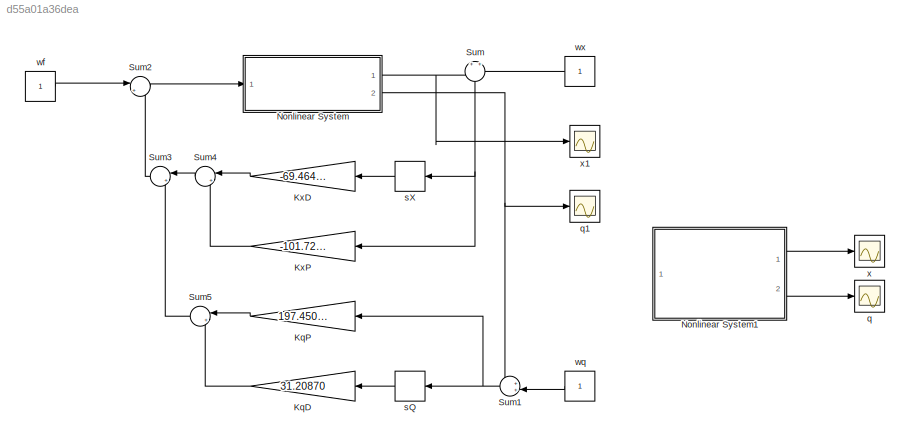
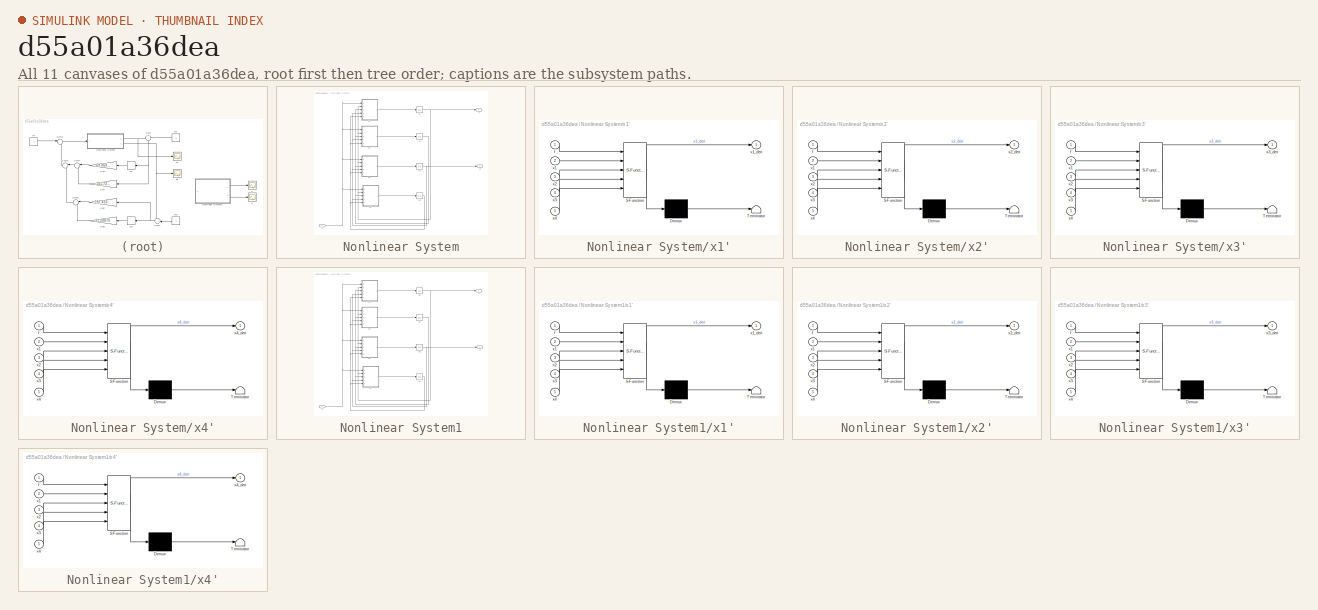
[diagram: thumbnail index - all 11 canvases of the model, root first then tree order]
MODEL slx_d55a01a36dea
KIND model
CONFIG AbsTol = auto
CONFIG FixedStep = auto
CONFIG MaxStep = auto
CONFIG MinStep = auto
CONFIG RelTol = 1e-3
CONFIG SampleTimeConstraint = Unconstrained
CONFIG Solver = VariableStepAuto
CONFIG SolverMode = Auto
CONFIG SolverName = VariableStepAuto
CONFIG StartTime = 0.0
CONFIG StopTime = 20.0
BLOCK [Gain] KqD
  Gain = 31.20870
  OutDataTypeStr = Inherit: Inherit via internal rule
  ParamDataTypeStr = Inherit: Inherit via internal rule
  SaturateOnIntegerOverflow = off
BLOCK [Gain] KqP
  Gain = 197.45085
  OutDataTypeStr = Inherit: Inherit via internal rule
  ParamDataTypeStr = Inherit: Inherit via internal rule
  SaturateOnIntegerOverflow = off
BLOCK [Gain] KxD
  Gain = -69.46499
  OutDataTypeStr = Inherit: Inherit via internal rule
  ParamDataTypeStr = Inherit: Inherit via internal rule
  SaturateOnIntegerOverflow = off
BLOCK [Gain] KxP
  Gain = -101.72465
  OutDataTypeStr = Inherit: Inherit via internal rule
  ParamDataTypeStr = Inherit: Inherit via internal rule
  SaturateOnIntegerOverflow = off
BLOCK [SubSystem] Nonlinear System
  Ports = [1, 2]
  RequestExecContextInheritance = off
  Variant = off
BLOCK [Inport] Nonlinear System/f
  IconDisplay = Port number
BLOCK [Outport] Nonlinear System/q
  IconDisplay = Port number
  Port = 2
BLOCK [Outport] Nonlinear System/x
  IconDisplay = Port number
BLOCK [Integrator] Nonlinear System/x1
  InitialCondition = -0.3
  Ports = [1, 1]
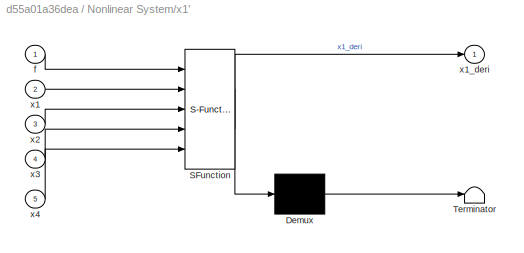
BLOCK [SubSystem] Nonlinear System/x1'
  ErrorFcn = Stateflow.Translate.translate
  PermitHierarchicalResolution = ExplicitOnly
  Ports = [5, 1]
  RequestExecContextInheritance = off
  SFBlockType = MATLAB Function
  TreatAsAtomicUnit = on
  Variant = off
BLOCK [Demux] Nonlinear System/x1'/ Demux 
  Outputs = 1
  Ports = [1, 1]
BLOCK [S-Function] Nonlinear System/x1'/ SFunction 
  EnableBusSupport = on
  FunctionName = sf_sfun
  PortCounts = [5 2]
  Ports = [5, 2]
  SFunctionDeploymentMode = off
  Tag = Stateflow S-Function elec3200lab4 3
BLOCK [Terminator] Nonlinear System/x1'/ Terminator 
BLOCK [Inport] Nonlinear System/x1'/f
  IconDisplay = Port number
BLOCK [Inport] Nonlinear System/x1'/x1
  IconDisplay = Port number
  Port = 2
BLOCK [Outport] Nonlinear System/x1'/x1_deri
  IconDisplay = Port number
BLOCK [Inport] Nonlinear System/x1'/x2
  IconDisplay = Port number
  Port = 3
BLOCK [Inport] Nonlinear System/x1'/x3
  IconDisplay = Port number
  Port = 4
BLOCK [Inport] Nonlinear System/x1'/x4
  IconDisplay = Port number
  Port = 5
BLOCK [Integrator] Nonlinear System/x2
  Ports = [1, 1]
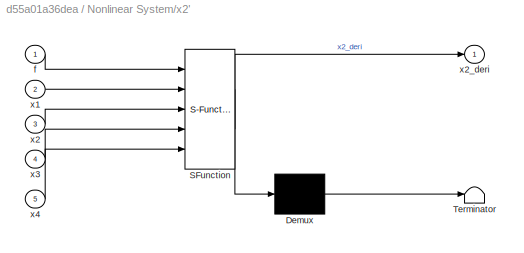
BLOCK [SubSystem] Nonlinear System/x2'
  ErrorFcn = Stateflow.Translate.translate
  PermitHierarchicalResolution = ExplicitOnly
  Ports = [5, 1]
  RequestExecContextInheritance = off
  SFBlockType = MATLAB Function
  TreatAsAtomicUnit = on
  Variant = off
BLOCK [Demux] Nonlinear System/x2'/ Demux 
  Outputs = 1
  Ports = [1, 1]
BLOCK [S-Function] Nonlinear System/x2'/ SFunction 
  EnableBusSupport = on
  FunctionName = sf_sfun
  PortCounts = [5 2]
  Ports = [5, 2]
  SFunctionDeploymentMode = off
  Tag = Stateflow S-Function elec3200lab4 1
BLOCK [Terminator] Nonlinear System/x2'/ Terminator 
BLOCK [Inport] Nonlinear System/x2'/f
  IconDisplay = Port number
BLOCK [Inport] Nonlinear System/x2'/x1
  IconDisplay = Port number
  Port = 2
BLOCK [Inport] Nonlinear System/x2'/x2
  IconDisplay = Port number
  Port = 3
BLOCK [Outport] Nonlinear System/x2'/x2_deri
  IconDisplay = Port number
BLOCK [Inport] Nonlinear System/x2'/x3
  IconDisplay = Port number
  Port = 4
BLOCK [Inport] Nonlinear System/x2'/x4
  IconDisplay = Port number
  Port = 5
BLOCK [Integrator] Nonlinear System/x3
  InitialCondition = -5/180*pi
  Ports = [1, 1]
BLOCK [SubSystem] Nonlinear System/x3'
  ErrorFcn = Stateflow.Translate.translate
  PermitHierarchicalResolution = ExplicitOnly
  Ports = [5, 1]
  RequestExecContextInheritance = off
  SFBlockType = MATLAB Function
  TreatAsAtomicUnit = on
  Variant = off
BLOCK [Demux] Nonlinear System/x3'/ Demux 
  Outputs = 1
  Ports = [1, 1]
BLOCK [S-Function] Nonlinear System/x3'/ SFunction 
  EnableBusSupport = on
  FunctionName = sf_sfun
  PortCounts = [5 2]
  Ports = [5, 2]
  SFunctionDeploymentMode = off
  Tag = Stateflow S-Function elec3200lab4 2
BLOCK [Terminator] Nonlinear System/x3'/ Terminator 
BLOCK [Inport] Nonlinear System/x3'/f
  IconDisplay = Port number
BLOCK [Inport] Nonlinear System/x3'/x1
  IconDisplay = Port number
  Port = 2
BLOCK [Inport] Nonlinear System/x3'/x2
  IconDisplay = Port number
  Port = 3
BLOCK [Inport] Nonlinear System/x3'/x3
  IconDisplay = Port number
  Port = 4
BLOCK [Outport] Nonlinear System/x3'/x3_deri
  IconDisplay = Port number
BLOCK [Inport] Nonlinear System/x3'/x4
  IconDisplay = Port number
  Port = 5
BLOCK [Integrator] Nonlinear System/x4
  InitialCondition = -0.5
  Ports = [1, 1]
BLOCK [SubSystem] Nonlinear System/x4'
  ErrorFcn = Stateflow.Translate.translate
  PermitHierarchicalResolution = ExplicitOnly
  Ports = [5, 1]
  RequestExecContextInheritance = off
  SFBlockType = MATLAB Function
  TreatAsAtomicUnit = on
  Variant = off
BLOCK [Demux] Nonlinear System/x4'/ Demux 
  Outputs = 1
  Ports = [1, 1]
BLOCK [S-Function] Nonlinear System/x4'/ SFunction 
  EnableBusSupport = on
  FunctionName = sf_sfun
  PortCounts = [5 2]
  Ports = [5, 2]
  SFunctionDeploymentMode = off
  Tag = Stateflow S-Function elec3200lab4 4
BLOCK [Terminator] Nonlinear System/x4'/ Terminator 
BLOCK [Inport] Nonlinear System/x4'/f
  IconDisplay = Port number
BLOCK [Inport] Nonlinear System/x4'/x1
  IconDisplay = Port number
  Port = 2
BLOCK [Inport] Nonlinear System/x4'/x2
  IconDisplay = Port number
  Port = 3
BLOCK [Inport] Nonlinear System/x4'/x3
  IconDisplay = Port number
  Port = 4
BLOCK [Inport] Nonlinear System/x4'/x4
  IconDisplay = Port number
  Port = 5
BLOCK [Outport] Nonlinear System/x4'/x4_deri
  IconDisplay = Port number
BLOCK [SubSystem] Nonlinear System1
  Ports = [1, 2]
  RequestExecContextInheritance = off
  Variant = off
BLOCK [Inport] Nonlinear System1/f
  IconDisplay = Port number
BLOCK [Outport] Nonlinear System1/q
  IconDisplay = Port number
  Port = 2
BLOCK [Outport] Nonlinear System1/x
  IconDisplay = Port number
BLOCK [Integrator] Nonlinear System1/x1
  Ports = [1, 1]
BLOCK [SubSystem] Nonlinear System1/x1'
  ErrorFcn = Stateflow.Translate.translate
  PermitHierarchicalResolution = ExplicitOnly
  Ports = [5, 1]
  RequestExecContextInheritance = off
  SFBlockType = MATLAB Function
  TreatAsAtomicUnit = on
  Variant = off
BLOCK [Demux] Nonlinear System1/x1'/ Demux 
  Outputs = 1
  Ports = [1, 1]
BLOCK [S-Function] Nonlinear System1/x1'/ SFunction 
  EnableBusSupport = on
  FunctionName = sf_sfun
  PortCounts = [5 2]
  Ports = [5, 2]
  SFunctionDeploymentMode = off
  Tag = Stateflow S-Function elec3200lab4 5
BLOCK [Terminator] Nonlinear System1/x1'/ Terminator 
BLOCK [Inport] Nonlinear System1/x1'/f
  IconDisplay = Port number
BLOCK [Inport] Nonlinear System1/x1'/x1
  IconDisplay = Port number
  Port = 2
BLOCK [Outport] Nonlinear System1/x1'/x1_deri
  IconDisplay = Port number
BLOCK [Inport] Nonlinear System1/x1'/x2
  IconDisplay = Port number
  Port = 3
BLOCK [Inport] Nonlinear System1/x1'/x3
  IconDisplay = Port number
  Port = 4
BLOCK [Inport] Nonlinear System1/x1'/x4
  IconDisplay = Port number
  Port = 5
BLOCK [Integrator] Nonlinear System1/x2
  Ports = [1, 1]
BLOCK [SubSystem] Nonlinear System1/x2'
  ErrorFcn = Stateflow.Translate.translate
  PermitHierarchicalResolution = ExplicitOnly
  Ports = [5, 1]
  RequestExecContextInheritance = off
  SFBlockType = MATLAB Function
  TreatAsAtomicUnit = on
  Variant = off
BLOCK [Demux] Nonlinear System1/x2'/ Demux 
  Outputs = 1
  Ports = [1, 1]
BLOCK [S-Function] Nonlinear System1/x2'/ SFunction 
  EnableBusSupport = on
  FunctionName = sf_sfun
  PortCounts = [5 2]
  Ports = [5, 2]
  SFunctionDeploymentMode = off
  Tag = Stateflow S-Function elec3200lab4 6
BLOCK [Terminator] Nonlinear System1/x2'/ Terminator 
BLOCK [Inport] Nonlinear System1/x2'/f
  IconDisplay = Port number
BLOCK [Inport] Nonlinear System1/x2'/x1
  IconDisplay = Port number
  Port = 2
BLOCK [Inport] Nonlinear System1/x2'/x2
  IconDisplay = Port number
  Port = 3
BLOCK [Outport] Nonlinear System1/x2'/x2_deri
  IconDisplay = Port number
BLOCK [Inport] Nonlinear System1/x2'/x3
  IconDisplay = Port number
  Port = 4
BLOCK [Inport] Nonlinear System1/x2'/x4
  IconDisplay = Port number
  Port = 5
BLOCK [Integrator] Nonlinear System1/x3
  InitialCondition = 3/180*pi
  Ports = [1, 1]
BLOCK [SubSystem] Nonlinear System1/x3'
  ErrorFcn = Stateflow.Translate.translate
  PermitHierarchicalResolution = ExplicitOnly
  Ports = [5, 1]
  RequestExecContextInheritance = off
  SFBlockType = MATLAB Function
  TreatAsAtomicUnit = on
  Variant = off
BLOCK [Demux] Nonlinear System1/x3'/ Demux 
  Outputs = 1
  Ports = [1, 1]
BLOCK [S-Function] Nonlinear System1/x3'/ SFunction 
  EnableBusSupport = on
  FunctionName = sf_sfun
  PortCounts = [5 2]
  Ports = [5, 2]
  SFunctionDeploymentMode = off
  Tag = Stateflow S-Function elec3200lab4 7
BLOCK [Terminator] Nonlinear System1/x3'/ Terminator 
BLOCK [Inport] Nonlinear System1/x3'/f
  IconDisplay = Port number
BLOCK [Inport] Nonlinear System1/x3'/x1
  IconDisplay = Port number
  Port = 2
BLOCK [Inport] Nonlinear System1/x3'/x2
  IconDisplay = Port number
  Port = 3
BLOCK [Inport] Nonlinear System1/x3'/x3
  IconDisplay = Port number
  Port = 4
BLOCK [Outport] Nonlinear System1/x3'/x3_deri
  IconDisplay = Port number
BLOCK [Inport] Nonlinear System1/x3'/x4
  IconDisplay = Port number
  Port = 5
BLOCK [Integrator] Nonlinear System1/x4
  Ports = [1, 1]
BLOCK [SubSystem] Nonlinear System1/x4'
  ErrorFcn = Stateflow.Translate.translate
  PermitHierarchicalResolution = ExplicitOnly
  Ports = [5, 1]
  RequestExecContextInheritance = off
  SFBlockType = MATLAB Function
  TreatAsAtomicUnit = on
  Variant = off
BLOCK [Demux] Nonlinear System1/x4'/ Demux 
  Outputs = 1
  Ports = [1, 1]
BLOCK [S-Function] Nonlinear System1/x4'/ SFunction 
  EnableBusSupport = on
  FunctionName = sf_sfun
  PortCounts = [5 2]
  Ports = [5, 2]
  SFunctionDeploymentMode = off
  Tag = Stateflow S-Function elec3200lab4 8
BLOCK [Terminator] Nonlinear System1/x4'/ Terminator 
BLOCK [Inport] Nonlinear System1/x4'/f
  IconDisplay = Port number
BLOCK [Inport] Nonlinear System1/x4'/x1
  IconDisplay = Port number
  Port = 2
BLOCK [Inport] Nonlinear System1/x4'/x2
  IconDisplay = Port number
  Port = 3
BLOCK [Inport] Nonlinear System1/x4'/x3
  IconDisplay = Port number
  Port = 4
BLOCK [Inport] Nonlinear System1/x4'/x4
  IconDisplay = Port number
  Port = 5
BLOCK [Outport] Nonlinear System1/x4'/x4_deri
  IconDisplay = Port number
BLOCK [Sum] Sum
  IconShape = round
  InputSameDT = off
  Inputs = +|+
  OutDataTypeStr = Inherit: Inherit via internal rule
  Ports = [2, 1]
  SaturateOnIntegerOverflow = off
BLOCK [Sum] Sum1
  IconShape = round
  InputSameDT = off
  Inputs = ++|
  OutDataTypeStr = Inherit: Inherit via internal rule
  Ports = [2, 1]
  SaturateOnIntegerOverflow = off
BLOCK [Sum] Sum2
  IconShape = round
  InputSameDT = off
  Inputs = |+-
  OutDataTypeStr = Inherit: Inherit via internal rule
  Ports = [2, 1]
  SaturateOnIntegerOverflow = off
BLOCK [Sum] Sum3
  IconShape = round
  InputSameDT = off
  Inputs = |++
  OutDataTypeStr = Inherit: Inherit via internal rule
  Ports = [2, 1]
  SaturateOnIntegerOverflow = off
BLOCK [Sum] Sum4
  IconShape = round
  InputSameDT = off
  Inputs = |++
  OutDataTypeStr = Inherit: Inherit via internal rule
  Ports = [2, 1]
  SaturateOnIntegerOverflow = off
BLOCK [Sum] Sum5
  IconShape = round
  InputSameDT = off
  Inputs = |++
  OutDataTypeStr = Inherit: Inherit via internal rule
  Ports = [2, 1]
  SaturateOnIntegerOverflow = off
BLOCK [Scope] q
  Ports = [1]
  ScopeSpecificationString = Simulink.scopes.TimeScopeBlockCfg('CurrentConfiguration', extmgr.ConfigurationSet(extmgr.Configuration('Core','General UI',true),extmgr.Configuration('Core','Source UI',true),extmgr.Configuration('Sources','WiredSimulink',true,'DataLoggingVariableName','ScopeData1'),extmgr.Configuration('Visuals','Time Domain',true,'SerializedDisplays',{struct('MinYLimReal','-0.71696','MaxYLimReal','6.97626','YLab...<+1409ch>
BLOCK [Scope] q1
  Ports = [1]
  ScopeSpecificationString = Simulink.scopes.TimeScopeBlockCfg('CurrentConfiguration', extmgr.ConfigurationSet(extmgr.Configuration('Core','General UI',true),extmgr.Configuration('Core','Source UI',true),extmgr.Configuration('Sources','WiredSimulink',true,'DataLoggingVariableName','ScopeData3'),extmgr.Configuration('Visuals','Time Domain',true,'SerializedDisplays',{struct('MinYLimReal','-0.71547','MaxYLimReal','0.39266','YLab...<+1411ch>
BLOCK [Derivative] sQ
BLOCK [Derivative] sX
BLOCK [Constant] wf
BLOCK [Constant] wq
BLOCK [Constant] wx
BLOCK [Scope] x
  Ports = [1]
  ScopeSpecificationString = Simulink.scopes.TimeScopeBlockCfg('CurrentConfiguration', extmgr.ConfigurationSet(extmgr.Configuration('Core','General UI',true),extmgr.Configuration('Core','Source UI',true),extmgr.Configuration('Sources','WiredSimulink',true),extmgr.Configuration('Visuals','Time Domain',true,'SerializedDisplays',{struct('MinYLimReal','-0.02797','MaxYLimReal','0.05707','YLabelReal','','MinYLimMag','0.00000','MaxY...<+1371ch>
BLOCK [Scope] x1
  Ports = [1]
  ScopeSpecificationString = Simulink.scopes.TimeScopeBlockCfg('CurrentConfiguration', extmgr.ConfigurationSet(extmgr.Configuration('Core','General UI',true),extmgr.Configuration('Core','Source UI',true),extmgr.Configuration('Sources','WiredSimulink',true,'DataLoggingVariableName','ScopeData2'),extmgr.Configuration('Visuals','Time Domain',true,'SerializedDisplays',{struct('MinYLimReal','-0.57316','MaxYLimReal','1.09835','YLab...<+1403ch>
LINE KqD:1 -> Sum5:2
LINE KqP:1 -> Sum5:1
LINE KxD:1 -> Sum4:1
LINE KxP:1 -> Sum4:2
NET Nonlinear System/f:1 -> Nonlinear System/x1':1, Nonlinear System/x2':1, Nonlinear System/x3':1, Nonlinear System/x4':1
LINE Nonlinear System/x1':1 -> Nonlinear System/x1:1
NET Nonlinear System/x1:1 -> Nonlinear System/x1':2, Nonlinear System/x2':2, Nonlinear System/x3':2, Nonlinear System/x4':2, Nonlinear System/x:1
LINE Nonlinear System/x2':1 -> Nonlinear System/x2:1
NET Nonlinear System/x2:1 -> Nonlinear System/x1':3, Nonlinear System/x2':3, Nonlinear System/x3':3, Nonlinear System/x4':3
LINE Nonlinear System/x3':1 -> Nonlinear System/x3:1
NET Nonlinear System/x3:1 -> Nonlinear System/q:1, Nonlinear System/x1':4, Nonlinear System/x2':4, Nonlinear System/x3':4, Nonlinear System/x4':4
LINE Nonlinear System/x4':1 -> Nonlinear System/x4:1
NET Nonlinear System/x4:1 -> Nonlinear System/x1':5, Nonlinear System/x2':5, Nonlinear System/x3':5, Nonlinear System/x4':5
NET Nonlinear System1/f:1 -> Nonlinear System1/x1':1, Nonlinear System1/x2':1, Nonlinear System1/x3':1, Nonlinear System1/x4':1
LINE Nonlinear System1/x1':1 -> Nonlinear System1/x1:1
NET Nonlinear System1/x1:1 -> Nonlinear System1/x1':2, Nonlinear System1/x2':2, Nonlinear System1/x3':2, Nonlinear System1/x4':2, Nonlinear System1/x:1
LINE Nonlinear System1/x2':1 -> Nonlinear System1/x2:1
NET Nonlinear System1/x2:1 -> Nonlinear System1/x1':3, Nonlinear System1/x2':3, Nonlinear System1/x3':3, Nonlinear System1/x4':3
LINE Nonlinear System1/x3':1 -> Nonlinear System1/x3:1
NET Nonlinear System1/x3:1 -> Nonlinear System1/q:1, Nonlinear System1/x1':4, Nonlinear System1/x2':4, Nonlinear System1/x3':4, Nonlinear System1/x4':4
LINE Nonlinear System1/x4':1 -> Nonlinear System1/x4:1
NET Nonlinear System1/x4:1 -> Nonlinear System1/x1':5, Nonlinear System1/x2':5, Nonlinear System1/x3':5, Nonlinear System1/x4':5
LINE Nonlinear System1:1 -> x:1
LINE Nonlinear System1:2 -> q:1
NET Nonlinear System:1 -> Sum:1, x1:1
NET Nonlinear System:2 -> Sum1:1, q1:1
NET Sum1:1 -> KqP:1, sQ:1
LINE Sum2:1 -> Nonlinear System:1
LINE Sum3:1 -> Sum2:2
LINE Sum4:1 -> Sum3:1
LINE Sum5:1 -> Sum3:2
NET Sum:1 -> KxP:1, sX:1
LINE sQ:1 -> KqD:1
LINE sX:1 -> KxD:1
LINE wf:1 -> Sum2:1
LINE wq:1 -> Sum1:2
LINE wx:1 -> Sum:2
note: NET lines group one-source signal fan-out (src -> all destinations, sorted); 1:1 wires keep LINE
CHART Nonlinear System/x2' states=1 transitions=1
  STATE_LABEL 'eML_blk_kernel()'
  STATE_LABEL 'SCRIPT:\nfunction x2_deri  = cal_dx2(f,x1,x2,x3,x4)\nMp = 0.07;\nMc = 1.42;\nMb = 0.05;\ng = 9.8;\nL = 0.335;\n\nx2_deri = (- 12*L*sin(x3)*Mb^2*x4^2 + 12*g*cos(x3)*sin(x3)*Mb^2 - 10*L*sin(x3)*Mb*Mp*x4^2 + 12*g*cos(x3)*sin(x3)*Mb*Mp ...\n    + 12*f*Mb - 2*L*sin(x3)*Mp^2*x4^2 + 3*g*cos(x3)*sin(x3)*Mp^2 + 4*f*Mp)...\n    /(12*Mb^2 - 3*Mp^2*cos(x3)^2 - 12*Mb^2*cos(x3)^2 + 4*Mp^2 + 12*Mb*Mc + 16*Mb*Mp + 4*Mc*Mp ...<+23ch>'
CHART Nonlinear System/x3' states=1 transitions=1
  STATE_LABEL 'eML_blk_kernel()'
  STATE_LABEL 'SCRIPT:\nfunction x3_deri  = cal_dx3(f,x1,x2,x3,x4)\nMp = 0.07;\nMc = 1.42;\nMb = 0.05;\ng = 9.8;\nL = 0.335;\n\nx3_deri = x4;\n'
CHART Nonlinear System/x1' states=1 transitions=1
  STATE_LABEL 'eML_blk_kernel()'
  STATE_LABEL 'SCRIPT:\nfunction x1_deri  = cal_dx1(f,x1,x2,x3,x4)\nMp = 0.07;\nMc = 1.42;\nMb = 0.05;\ng = 9.8;\nL = 0.335;\n\nx1_deri = x2;\n'
CHART Nonlinear System/x4' states=1 transitions=1
  STATE_LABEL 'eML_blk_kernel()'
  STATE_LABEL 'SCRIPT:\nfunction x4_deri  = cal_dx4(f,x1,x2,x3,x4)\nMp = 0.07;\nMc = 1.42;\nMb = 0.05;\ng = 9.8;\nL = 0.335;\n\nx4_deri = (3*(2*Mb + Mp)*(2*f*cos(x3) + 2*Mb*g*sin(x3) + 2*Mc*g*sin(x3) + 2*Mp*g*sin(x3) - 2*L*Mb*x4^2*cos(x3)*sin(x3) - L*Mp*x4^2*cos(x3)*sin(x3)))...\n    /(L*(12*Mb^2 - 3*Mp^2*cos(x3)^2 - 12*Mb^2*cos(x3)^2 + 4*Mp^2 + 12*Mb*Mc + 16*Mb*Mp + 4*Mc*Mp - 12*Mb*Mp*cos(x3)^2));\n'
CHART Nonlinear System1/x1' states=1 transitions=1
  STATE_LABEL 'eML_blk_kernel()'
  STATE_LABEL 'SCRIPT:\nfunction x1_deri  = cal_dx1(f,x1,x2,x3,x4)\nMp = 0.07;\nMc = 1.42;\nMb = 0.05;\ng = 9.8;\nL = 0.335;\n\nx1_deri = x2;\n'
CHART Nonlinear System1/x2' states=1 transitions=1
  STATE_LABEL 'eML_blk_kernel()'
  STATE_LABEL 'SCRIPT:\nfunction x2_deri  = cal_dx2(f,x1,x2,x3,x4)\nMp = 0.07;\nMc = 1.42;\nMb = 0.05;\ng = 9.8;\nL = 0.335;\n\nx2_deri = (- 12*L*sin(x3)*Mb^2*x4^2 + 12*g*cos(x3)*sin(x3)*Mb^2 - 10*L*sin(x3)*Mb*Mp*x4^2 + 12*g*cos(x3)*sin(x3)*Mb*Mp + 12*f*Mb - 2*L*sin(x3)*Mp^2*x4^2 + 3*g*cos(x3)*sin(x3)*Mp^2 + 4*f*Mp)...\n    /(12*Mb^2 - 3*Mp^2*cos(x3)^2 - 12*Mb^2*cos(x3)^2 + 4*Mp^2 + 12*Mb*Mc + 16*Mb*Mp + 4*Mc*Mp - 12*Mb*...<+15ch>'
CHART Nonlinear System1/x3' states=1 transitions=1
  STATE_LABEL 'eML_blk_kernel()'
  STATE_LABEL 'SCRIPT:\nfunction x3_deri  = cal_dx3(f,x1,x2,x3,x4)\nMp = 0.07;\nMc = 1.42;\nMb = 0.05;\ng = 9.8;\nL = 0.335;\n\nx3_deri = x4;\n'
CHART Nonlinear System1/x4' states=1 transitions=1
  STATE_LABEL 'eML_blk_kernel()'
  STATE_LABEL 'SCRIPT:\nfunction x4_deri  = cal_dx4(f,x1,x2,x3,x4)\nMp = 0.07;\nMc = 1.42;\nMb = 0.05;\ng = 9.8;\nL = 0.335;\n\nx4_deri = (3*(2*Mb + Mp)*(2*f*cos(x3) + 2*Mb*g*sin(x3) + 2*Mc*g*sin(x3) + 2*Mp*g*sin(x3) - 2*L*Mb*x4^2*cos(x3)*sin(x3) - L*Mp*x4^2*cos(x3)*sin(x3)))...\n    /(L*(12*Mb^2 - 3*Mp^2*cos(x3)^2 - 12*Mb^2*cos(x3)^2 + 4*Mp^2 + 12*Mb*Mc + 16*Mb*Mp + 4*Mc*Mp - 12*Mb*Mp*cos(x3)^2));\n'
